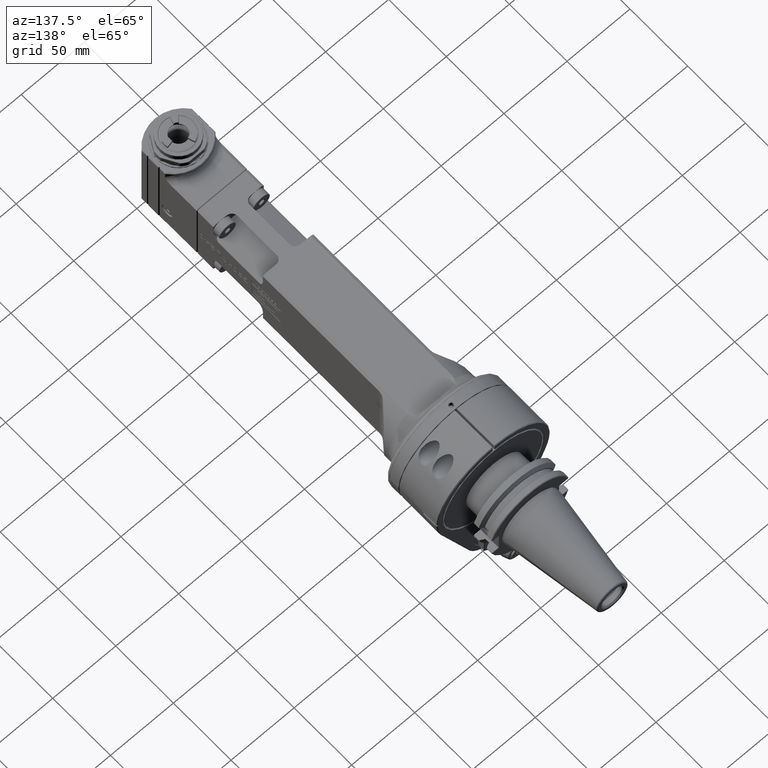
[diagram: clean part render]
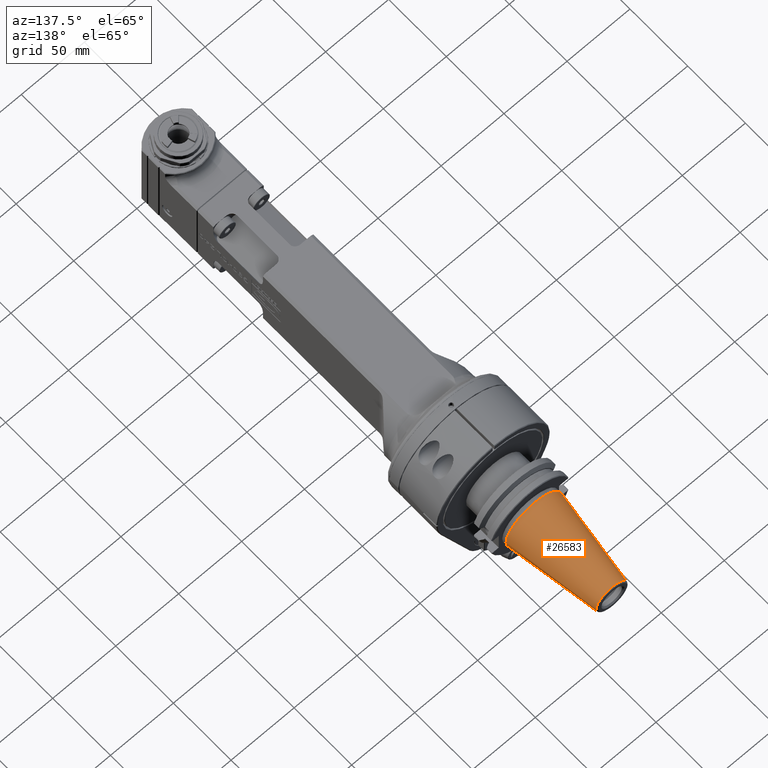
[diagram: same view with one face highlighted and labeled with its STEP entity id]
A machine part, auxiliary view. The second image highlights one B-rep face of the part: STEP entity #26583.
In plain terms, the highlighted conical surface has half-angle 8.3 deg.
Its self-contained STEP definition (entity closure, byte-faithful):
#812=CONICAL_SURFACE('',#28540,17.31065452764,0.144862327915529);
#1347=CIRCLE('',#28538,22.225);
#1348=CIRCLE('',#28539,22.225);
#1349=CIRCLE('',#28541,12.39630905528);
#1350=CIRCLE('',#28542,12.39630905528);
#2607=FACE_OUTER_BOUND('',#4164,.T.);
#4164=EDGE_LOOP('',(#19414,#19415,#19416,#19417,#19418,#19419));
#6039=LINE('',#41235,#8616);
#8616=VECTOR('',#32529,17.31065452764);
#11270=VERTEX_POINT('',#41228);
#11271=VERTEX_POINT('',#41229);
#11272=VERTEX_POINT('',#41234);
#11273=VERTEX_POINT('',#41236);
#14277=EDGE_CURVE('',#11270,#11271,#1347,.T.);
#14279=EDGE_CURVE('',#11271,#11270,#1348,.T.);
#14280=EDGE_CURVE('',#11270,#11272,#6039,.T.);
#14281=EDGE_CURVE('',#11272,#11273,#1349,.T.);
#14282=EDGE_CURVE('',#11273,#11272,#1350,.T.);
#19414=ORIENTED_EDGE('',*,*,#14277,.F.);
#19415=ORIENTED_EDGE('',*,*,#14280,.T.);
#19416=ORIENTED_EDGE('',*,*,#14281,.T.);
#19417=ORIENTED_EDGE('',*,*,#14282,.T.);
#19418=ORIENTED_EDGE('',*,*,#14280,.F.);
#19419=ORIENTED_EDGE('',*,*,#14279,.F.);
#26583=ADVANCED_FACE('',(#2607),#812,.T.);
#28538=AXIS2_PLACEMENT_3D('',#41230,#32522,#32523);
#28539=AXIS2_PLACEMENT_3D('',#41232,#32525,#32526);
#28540=AXIS2_PLACEMENT_3D('',#41233,#32527,#32528);
#28541=AXIS2_PLACEMENT_3D('',#41237,#32530,#32531);
#28542=AXIS2_PLACEMENT_3D('',#41238,#32532,#32533);
#32522=DIRECTION('center_axis',(0.,-1.,0.));
#32523=DIRECTION('ref_axis',(-1.,0.,0.));
#32525=DIRECTION('center_axis',(0.,-1.,0.));
#32526=DIRECTION('ref_axis',(-1.,0.,0.));
#32527=DIRECTION('center_axis',(0.,-1.,0.));
#32528=DIRECTION('ref_axis',(-1.,0.,0.));
#32529=DIRECTION('',(-0.144356201000973,0.989525789068969,-1.76785359492914E-17));
#32530=DIRECTION('center_axis',(0.,-1.,0.));
#32531=DIRECTION('ref_axis',(1.,0.,2.949518067144E-12));
#32532=DIRECTION('center_axis',(0.,-1.,0.));
#32533=DIRECTION('ref_axis',(1.,0.,2.949518067144E-12));
#41228=CARTESIAN_POINT('',(22.225,67.9999999999999,3.277788040989E-11));
#41229=CARTESIAN_POINT('',(-22.225,67.9999999999998,2.72177751110499E-15));
#41230=CARTESIAN_POINT('Origin',(0.,67.9999999999998,0.));
#41232=CARTESIAN_POINT('Origin',(0.,67.9999999999998,0.));
#41233=CARTESIAN_POINT('Origin',(0.,101.6866137206,0.));
#41234=CARTESIAN_POINT('',(12.3963090552815,135.3732274412,1.51811002057918E-15));
#41235=CARTESIAN_POINT('',(17.31065452764,101.6866137206,2.119943765842E-15));
#41236=CARTESIAN_POINT('',(12.39538385673,135.3732274412,0.1514504484024));
#41237=CARTESIAN_POINT('Origin',(0.,135.3732274412,0.));
#41238=CARTESIAN_POINT('Origin',(0.,135.3732274412,0.));